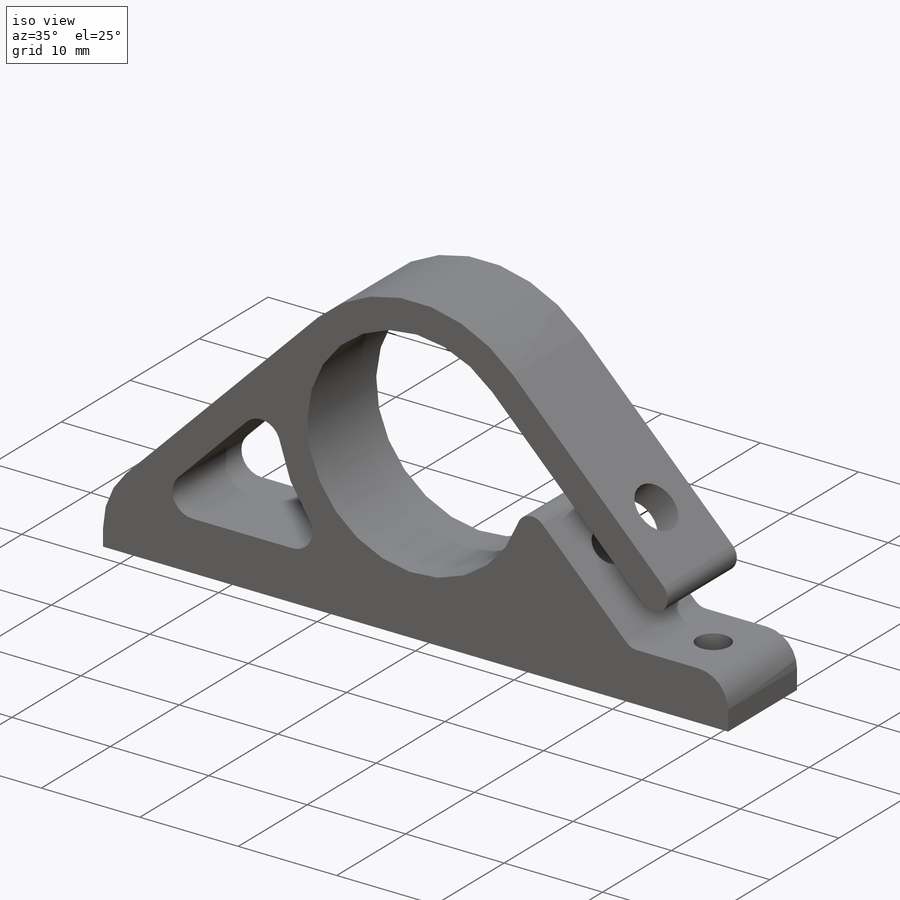
[diagram: iso view]
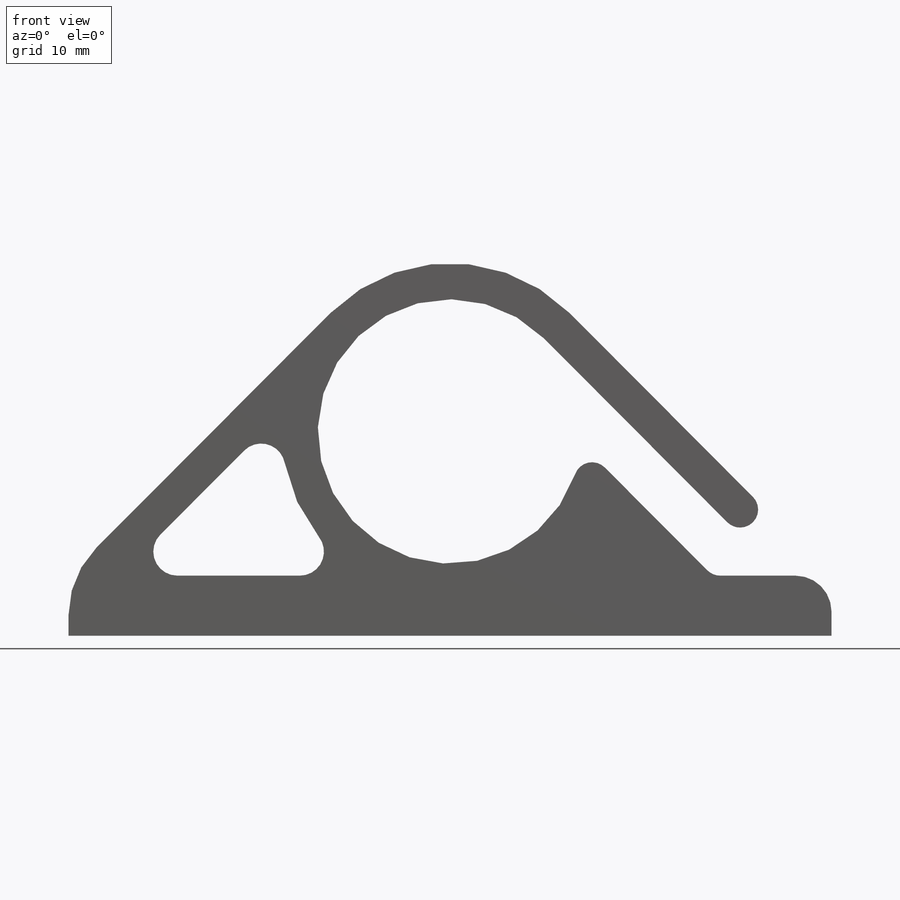
[diagram: front view]
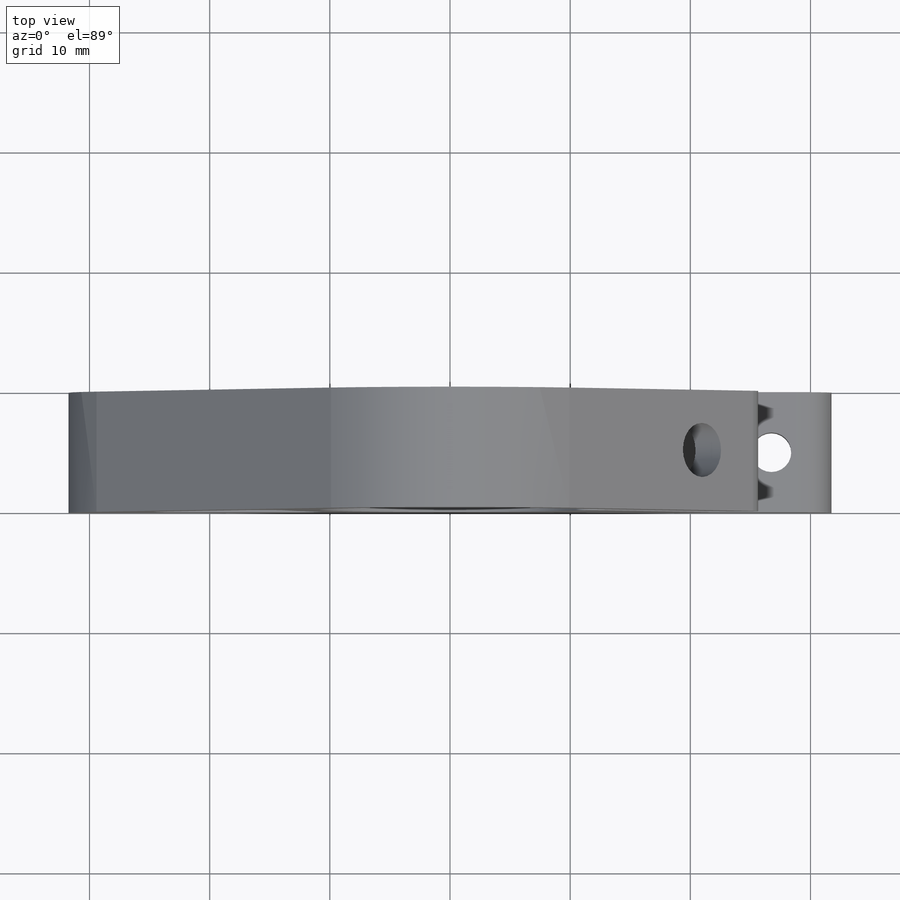
[diagram: top view]
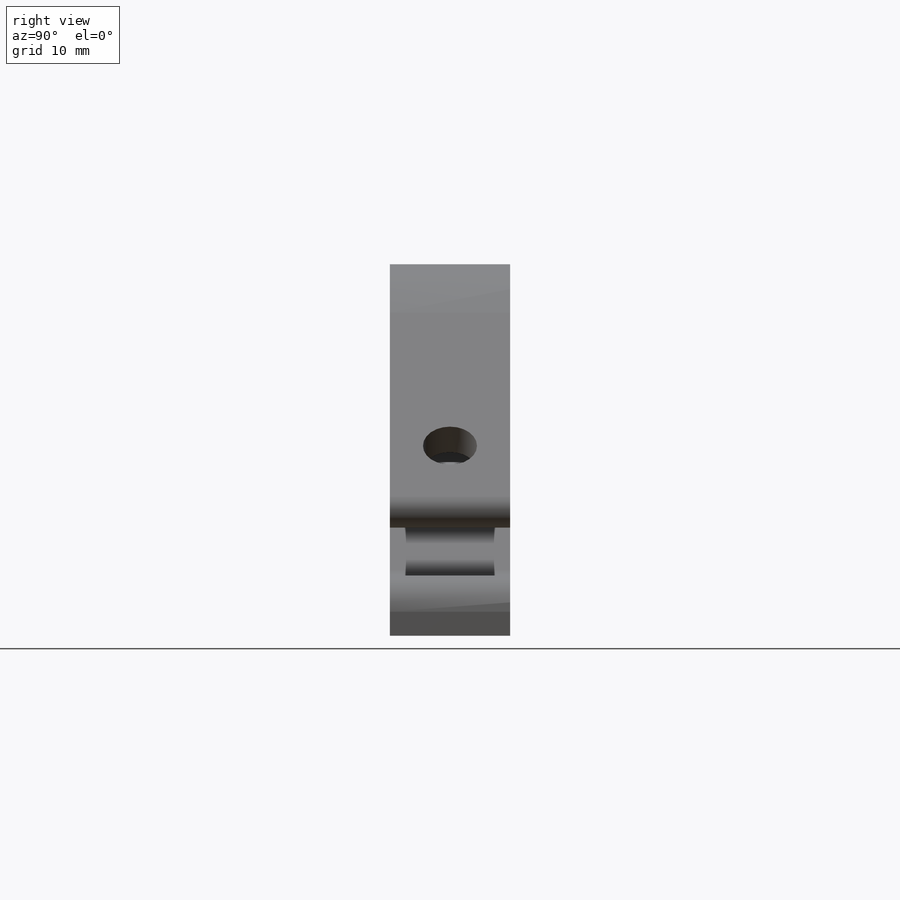
[diagram: right view]
SOLIDWORKS PART (.sldprt)
format: sldprt  version: not decoded by parser v0  size: 441,344 bytes
history: native  units: mm
features: sketch x11, fillet x4, plane x3, hole x3, thread x3, cut_extrude x2, material x1, extrude x1 (+8 scaffold rows collapsed)
feature tree (36):
  scaffold x8  (default folders/planes/origin — collapsed)
  material  "Сплав 2024"
  plane  "Спереди"
  plane  "Сверху"
  plane  "Справа"
  sketch  "Эскиз1"  dims[c1.D1=22.0mm c1.D5=28.0mm c1.D3=~11.445553mm c1.D4=~100.284848mm c2.D3=5.0mm c2.D4=63.5mm c2.D5=~10.454046mm c3.D3=~9.083772mm c3.D4=~62.040678mm c4.D3=5.0mm c4.D4=63.5mm c4.D5=12.0mm c4.D6=~40.962937mm c5.D3=5.0mm c5.D5=14.5mm c5.D6=5.0mm c5.D2=3.0mm]
  extrude  "Бобышка-Вытянуть1"  Depth=10mm
  sketch  "Эскиз2"  dims[c1.D1=~2.228332mm c1.D2=~34.662943mm c2.D1=4.0mm c2.D2=3.0mm c2.D3=~3.747586mm c2.D4=~8.475793mm c3.D3=4.0mm]
  cut_extrude  "Вырез-Вытянуть1"  [1 undecoded]
  fillet  "Скругление1"  Radius=1.5mm
  sketch  "Эскиз3"  dims[D1=5.0mm D2=5.0mm]
  hole  "Отверстие обработанное метчиком M4x0.71"  [1 undecoded]
  sketch  "Эскиз5"
  sketch  "Эскиз4"  dims[hole-wizard template sketch: 50 standard entries collapsed; hole parameters above]
  thread  "Отверстие резьбы1"  Diameter=5mm  [1 undecoded]
  thread  "Отверстие резьбы2"  Diameter=5mm  [1 undecoded]
  sketch  "Эскиз6"  dims[D1=6.0mm]
  hole  "Отверстие с зазором M41"  [1 undecoded]
  sketch  "Эскиз8"
  sketch  "Эскиз7"  dims[hole-wizard template sketch: 60 standard entries collapsed; hole parameters kept: c18.Глубина сквозного отверстия=3.0mm]
  hole  "Отверстие обработанное метчиком M4x0.72"  [1 undecoded]
  sketch  "Эскиз10"
  sketch  "Эскиз9"  dims[hole-wizard template sketch: 50 standard entries collapsed; hole parameters above]
  thread  "Отверстие резьбы3"  Diameter=8mm  [1 undecoded]
  fillet  "Скругление2"  Radius=3mm
  sketch  "Эскиз11"  dims[D3=4.0mm D4=14.0mm D1=5.0mm D2=3.0mm]
  cut_extrude  "Вырез-Вытянуть2"  [1 undecoded]
  fillet  "Скругление3"  Radius=2mm
  fillet  "Скругление5"  Radius=8mm
decode coverage: 16 of 24 modeling features carry decoded parameters
note: ~ marks probable driven/reference dimensions
note: 8 parameter values undecoded
summary: no parameter record found for 5 features
note: suppression state not decoded; provenance and decode notes live in map.json
